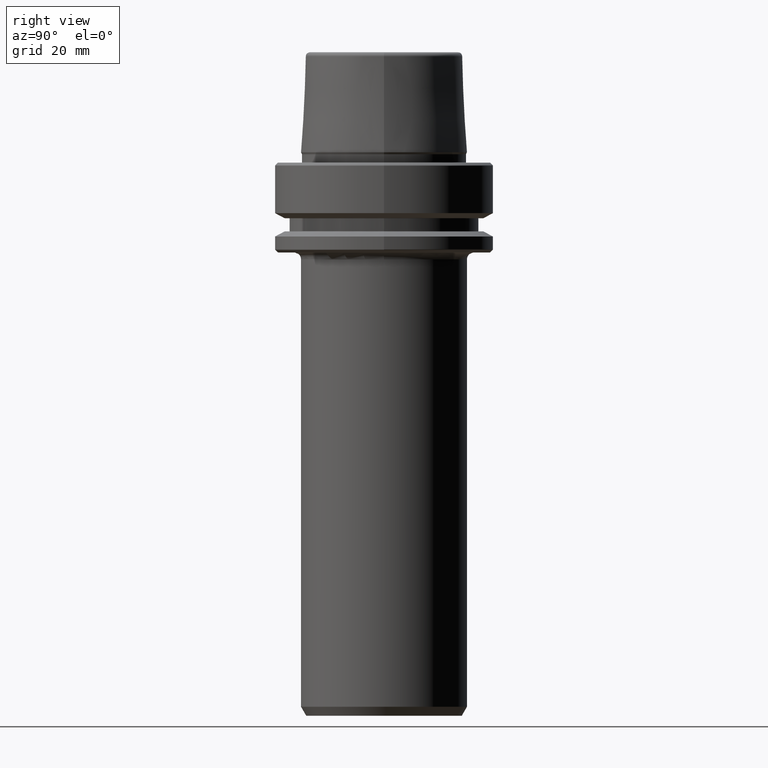
[diagram: clean part render]
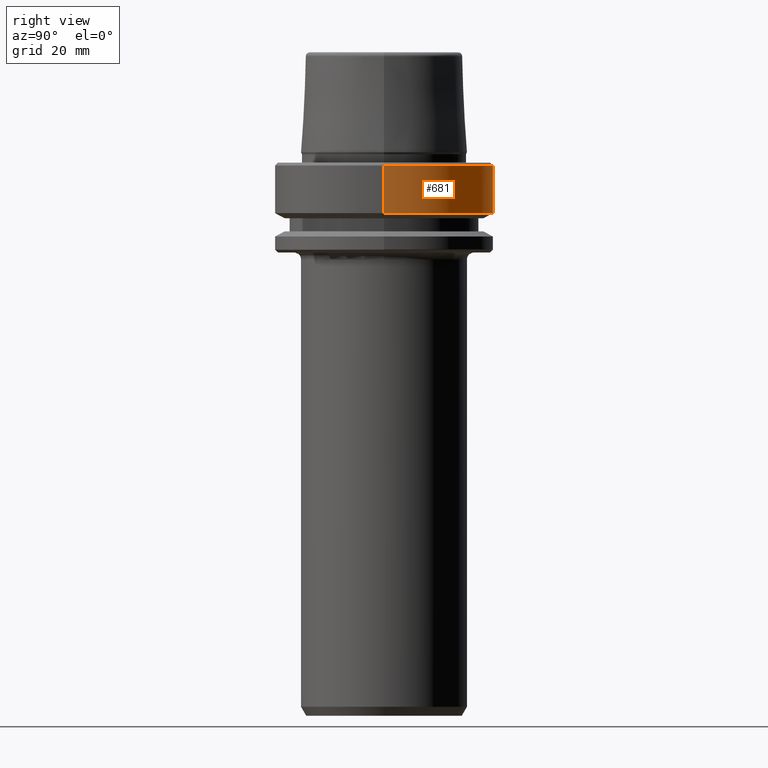
[diagram: same view with one face highlighted and labeled with its STEP entity id]
A machine part, right view. The second image highlights one B-rep face of the part: STEP entity #681.
In plain terms, the highlighted cylindrical surface (partial cylindrical patch) has radius 31.5 mm, axis along (-0, -0, 1).
Its self-contained STEP definition (entity closure, byte-faithful):
#43 = VECTOR ( 'NONE', #1133, 1000.000000000000000 ) ;
#49 = AXIS2_PLACEMENT_3D ( 'NONE', #443, #1125, #524 ) ;
#143 = DIRECTION ( 'NONE',  ( -0.0000000000000000000, -0.0000000000000000000, 1.000000000000000000 ) ) ;
#175 = VECTOR ( 'NONE', #239, 1000.000000000000000 ) ;
#224 = AXIS2_PLACEMENT_3D ( 'NONE', #374, #1035, #462 ) ;
#239 = DIRECTION ( 'NONE',  ( -0.0000000000000000000, -0.0000000000000000000, 1.000000000000000000 ) ) ;
#259 = CARTESIAN_POINT ( 'NONE',  ( 31.50000000000000000, 0.0000000000000000000, 78.96908074195309300 ) ) ;
#268 = VERTEX_POINT ( 'NONE', #689 ) ;
#311 = LINE ( 'NONE', #259, #43 ) ;
#338 = FACE_OUTER_BOUND ( 'NONE', #807, .T. ) ;
#374 = CARTESIAN_POINT ( 'NONE',  ( 0.0000000000000000000, 0.0000000000000000000, -14.62250092524070100 ) ) ;
#383 = ORIENTED_EDGE ( 'NONE', *, *, #837, .F. ) ;
#393 = CIRCLE ( 'NONE', #49, 31.50000000000000700 ) ;
#410 = VERTEX_POINT ( 'NONE', #429 ) ;
#429 = CARTESIAN_POINT ( 'NONE',  ( 31.50000000000000700, 0.0000000000000000000, -0.9656854249492363700 ) ) ;
#437 = CARTESIAN_POINT ( 'NONE',  ( -31.50000000000000000, 3.857637417314162700E-015, 78.96908074195309300 ) ) ;
#443 = CARTESIAN_POINT ( 'NONE',  ( 0.0000000000000000000, 0.0000000000000000000, -0.9656854249492363700 ) ) ;
#462 = DIRECTION ( 'NONE',  ( 1.000000000000000000, 0.0000000000000000000, 0.0000000000000000000 ) ) ;
#505 = VERTEX_POINT ( 'NONE', #677 ) ;
#514 = CYLINDRICAL_SURFACE ( 'NONE', #778, 31.50000000000000000 ) ;
#524 = DIRECTION ( 'NONE',  ( 1.000000000000000000, 0.0000000000000000000, 0.0000000000000000000 ) ) ;
#550 = VERTEX_POINT ( 'NONE', #855 ) ;
#558 = ORIENTED_EDGE ( 'NONE', *, *, #947, .T. ) ;
#672 = LINE ( 'NONE', #437, #175 ) ;
#677 = CARTESIAN_POINT ( 'NONE',  ( -31.50000000000000700, 3.857637417314163500E-015, -0.9656854249492363700 ) ) ;
#681 = ADVANCED_FACE ( 'NONE', ( #338 ), #514, .T. ) ;
#689 = CARTESIAN_POINT ( 'NONE',  ( 31.50000000000000000, 0.0000000000000000000, -14.62250092524070100 ) ) ;
#778 = AXIS2_PLACEMENT_3D ( 'NONE', #1001, #143, #1214 ) ;
#807 = EDGE_LOOP ( 'NONE', ( #1063, #558, #1202, #383 ) ) ;
#837 = EDGE_CURVE ( 'NONE', #268, #410, #311, .T. ) ;
#855 = CARTESIAN_POINT ( 'NONE',  ( -31.50000000000000000, 3.857637417314162700E-015, -14.62250092524070100 ) ) ;
#868 = CIRCLE ( 'NONE', #224, 31.50000000000000000 ) ;
#876 = EDGE_CURVE ( 'NONE', #268, #550, #868, .T. ) ;
#947 = EDGE_CURVE ( 'NONE', #550, #505, #672, .T. ) ;
#965 = EDGE_CURVE ( 'NONE', #410, #505, #393, .T. ) ;
#1001 = CARTESIAN_POINT ( 'NONE',  ( 0.0000000000000000000, 0.0000000000000000000, 78.96908074195309300 ) ) ;
#1035 = DIRECTION ( 'NONE',  ( -0.0000000000000000000, -0.0000000000000000000, 1.000000000000000000 ) ) ;
#1063 = ORIENTED_EDGE ( 'NONE', *, *, #876, .T. ) ;
#1125 = DIRECTION ( 'NONE',  ( -0.0000000000000000000, -0.0000000000000000000, 1.000000000000000000 ) ) ;
#1133 = DIRECTION ( 'NONE',  ( -0.0000000000000000000, -0.0000000000000000000, 1.000000000000000000 ) ) ;
#1202 = ORIENTED_EDGE ( 'NONE', *, *, #965, .F. ) ;
#1214 = DIRECTION ( 'NONE',  ( 1.000000000000000000, 0.0000000000000000000, 0.0000000000000000000 ) ) ;